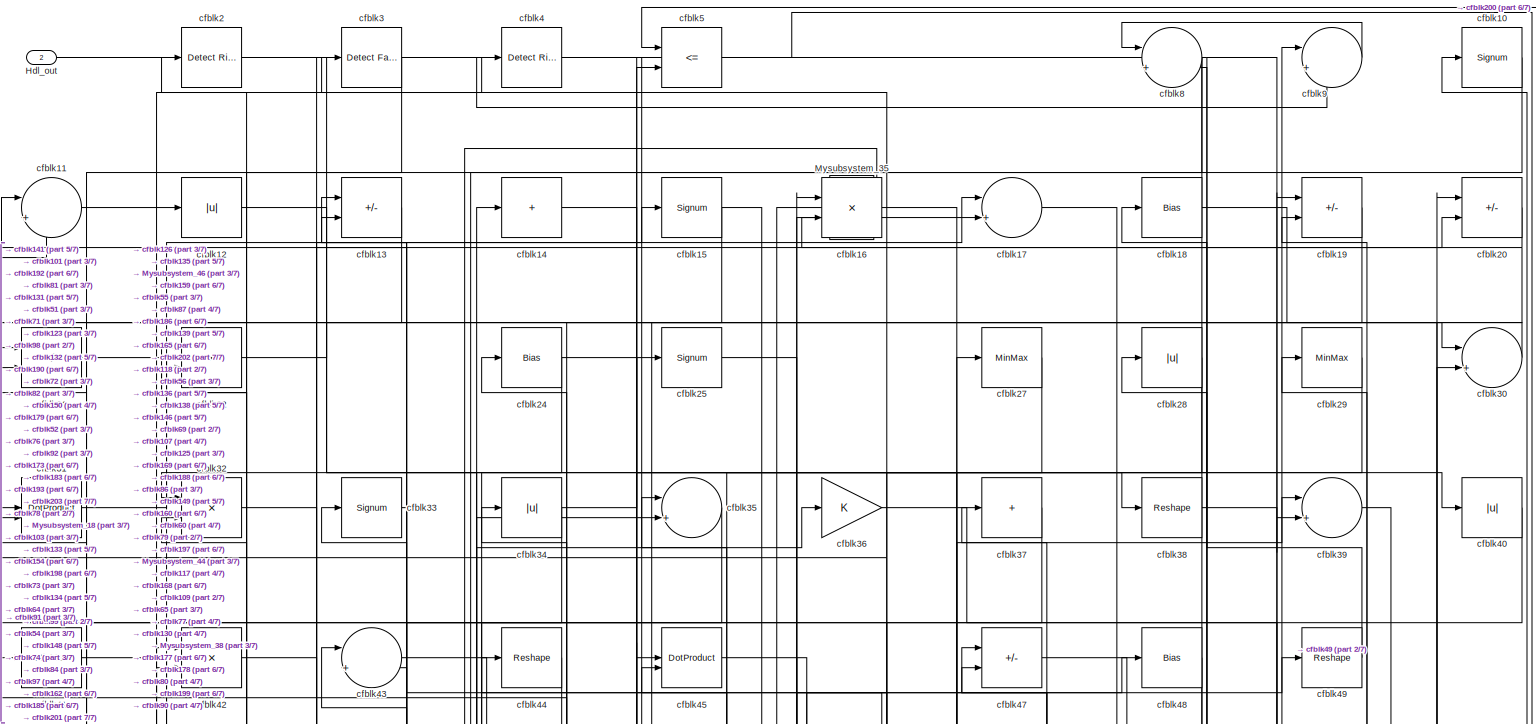
[diagram: root canvas - part 1/7, full width, top band]
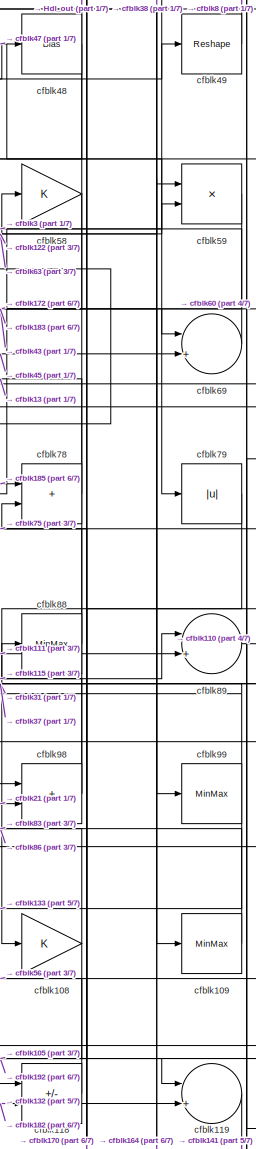
[diagram: root canvas - part 2/7, middle right region]
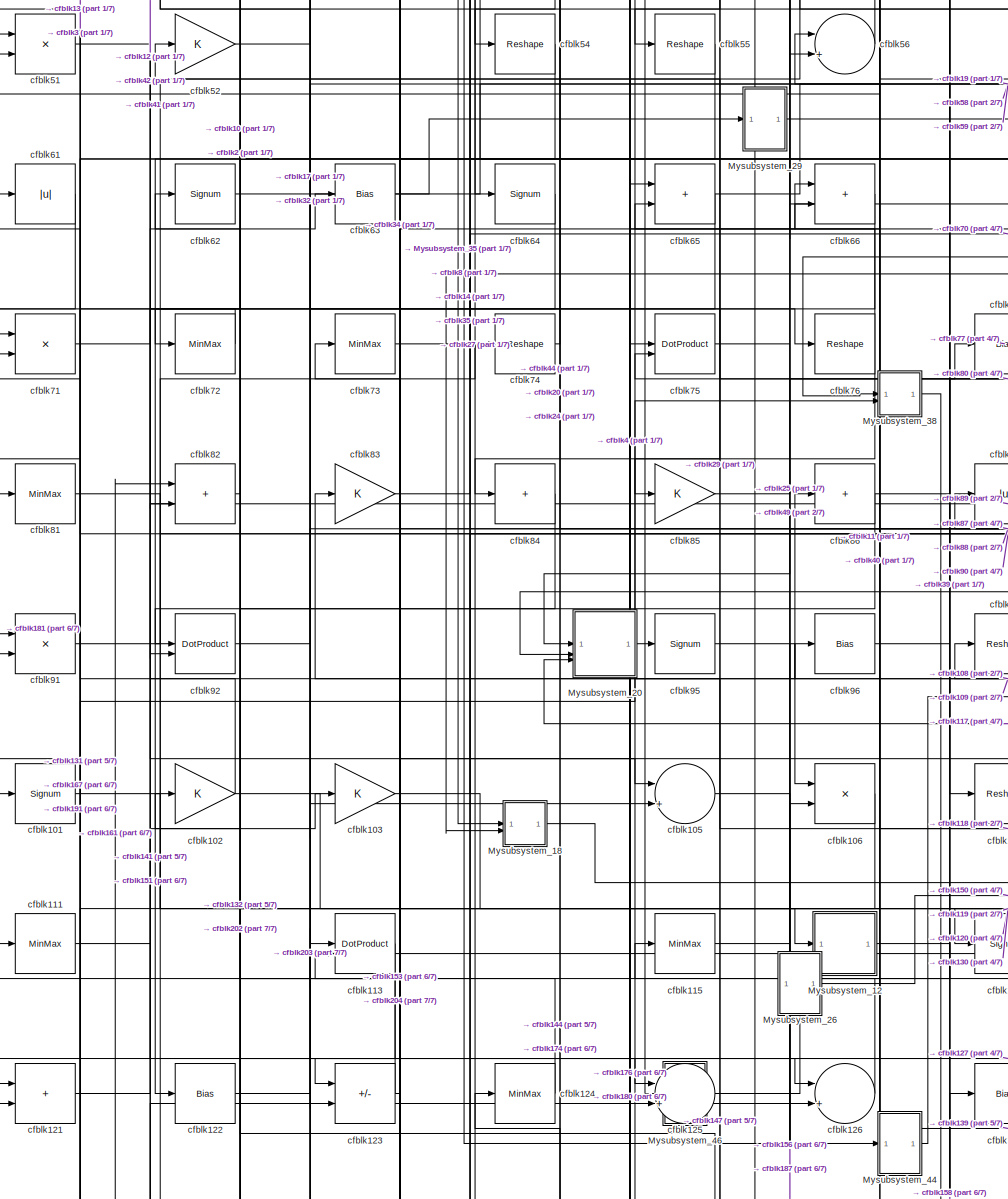
[diagram: root canvas - part 3/7, central region]
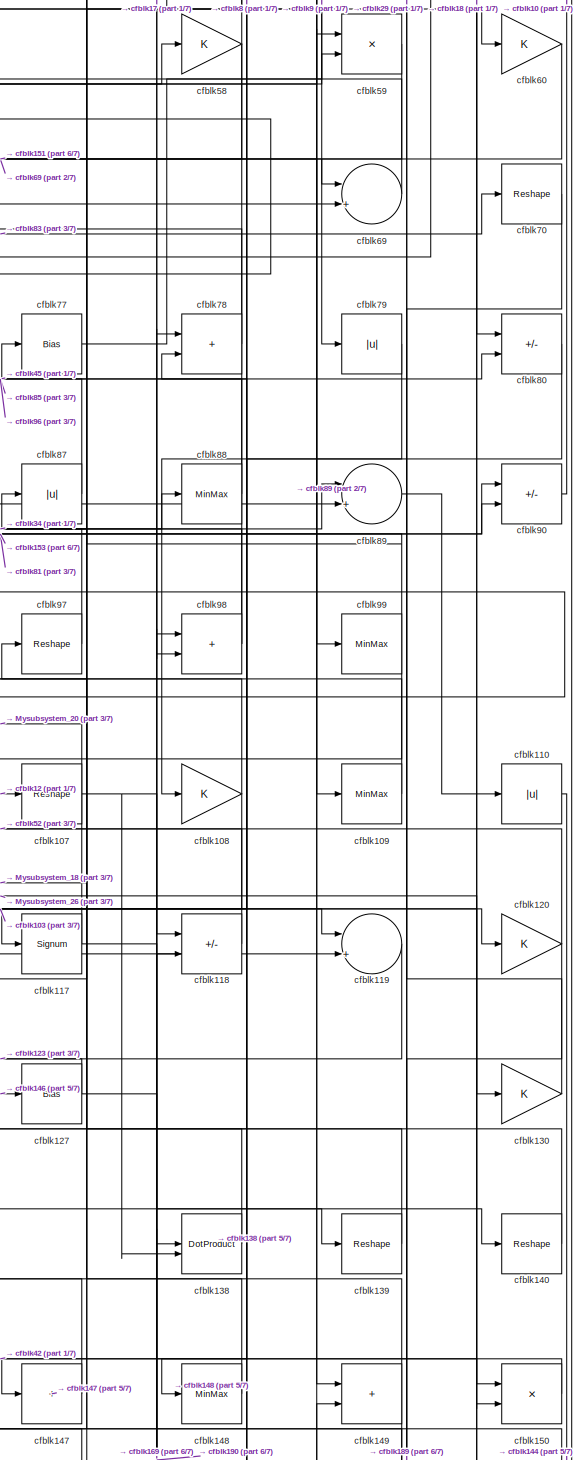
[diagram: root canvas - part 4/7, middle right region]
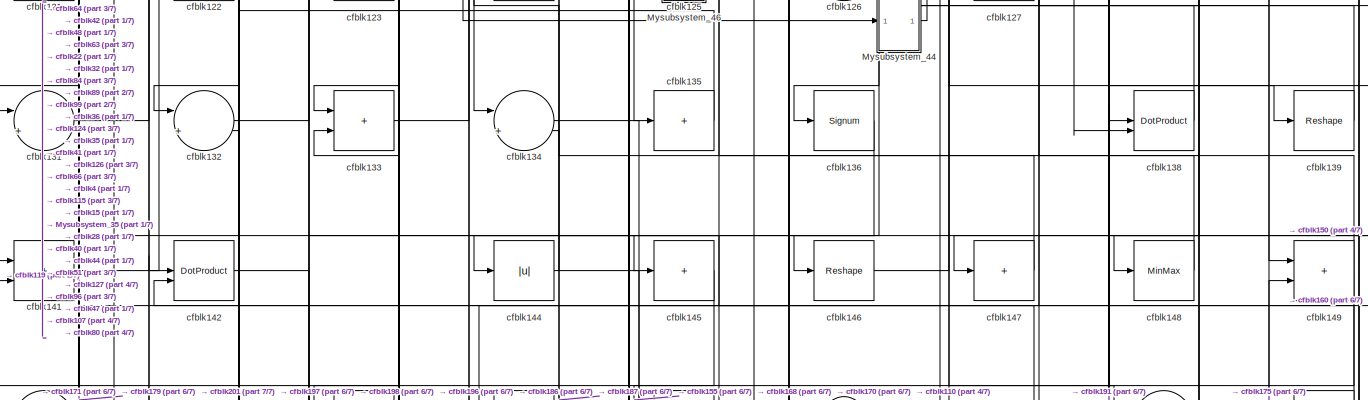
[diagram: root canvas - part 5/7, full width, bottom band]
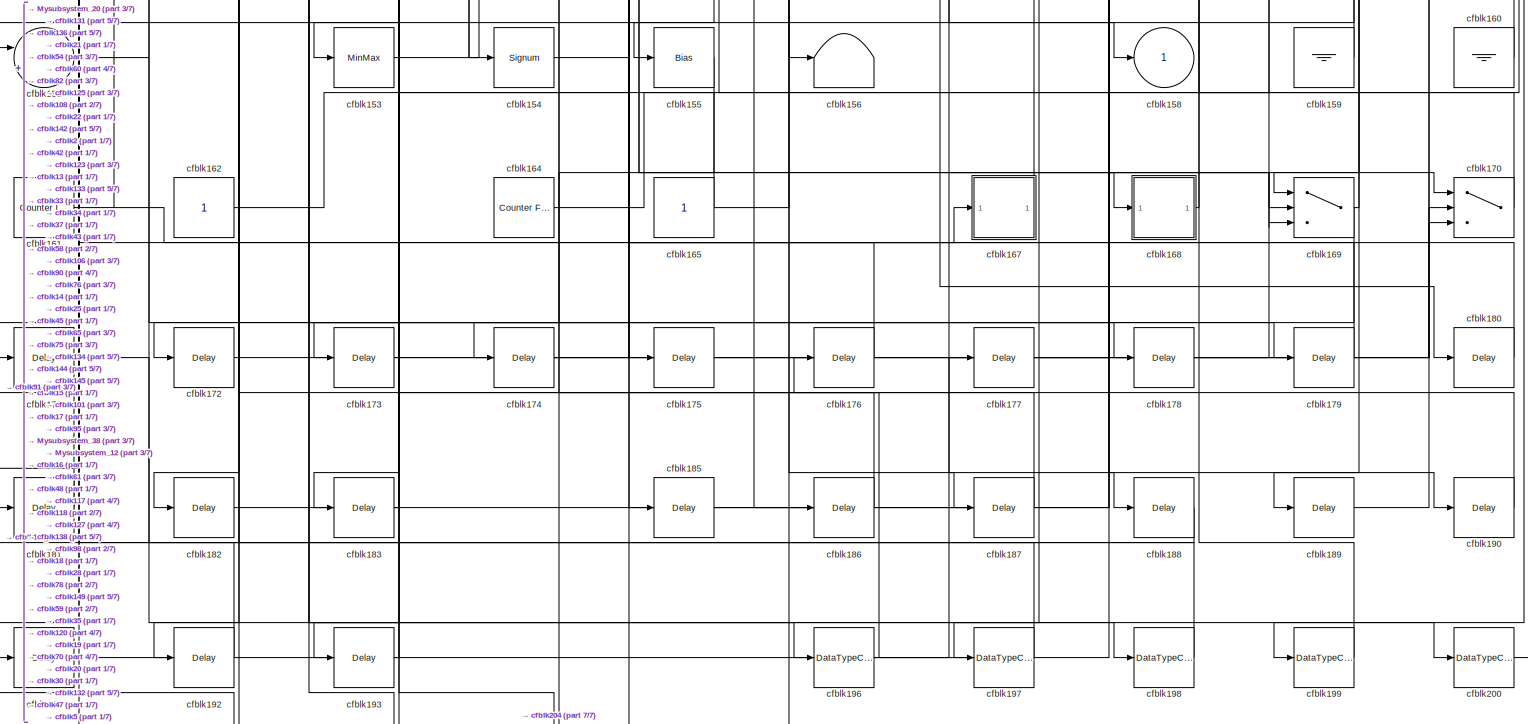
[diagram: root canvas - part 6/7, full width, bottom band]
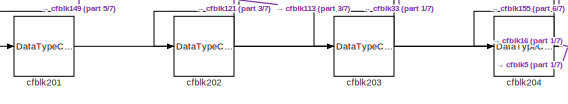
[diagram: root canvas - part 7/7, bottom left region]
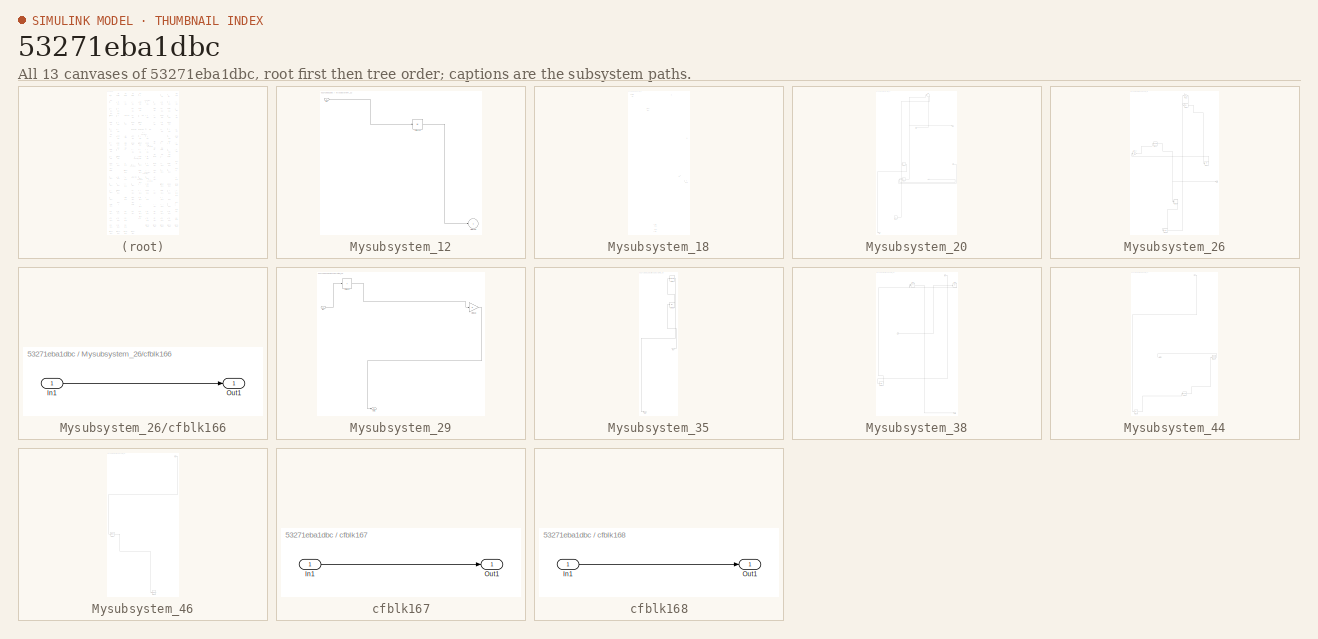
[diagram: thumbnail index - all 13 canvases of the model, root first then tree order]
MODEL slx_53271eba1dbc
KIND model
CONFIG AbsTol = auto
CONFIG EnableMultiTasking = off
CONFIG FixedStep = auto
CONFIG MaxStep = auto
CONFIG MinStep = auto
CONFIG RelTol = 1e-3
CONFIG SampleTimeConstraint = Unconstrained
CONFIG SolverName = VariableStepAuto
CONFIG StartTime = 0.0
CONFIG StopTime = 10.0
BLOCK [Outport] Hdl_out
  OutDataTypeStr = uint8
  Port = 2
BLOCK [SubSystem] Mysubsystem_12
  RTWFcnName = Mysubsystem_12
  RTWFcnNameOpts = User specified
  RTWFileNameOpts = Use function name
  RTWSystemCode = Reusable function
  TreatAsAtomicUnit = on
BLOCK [Inport] Mysubsystem_12/In1
BLOCK [Abs] Mysubsystem_12/cfblk116
  SaturateOnIntegerOverflow = off
BLOCK [Outport] Mysubsystem_12/cfblk158
  VectorParamsAs1DForOutWhenUnconnected = off
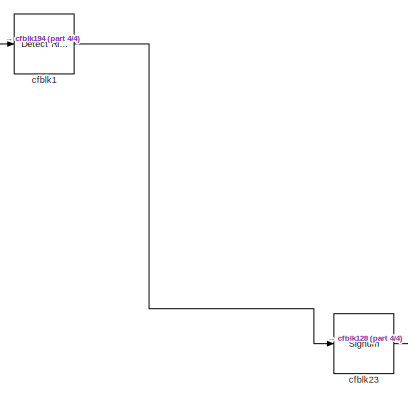
[diagram: Mysubsystem_18 - part 1/4, top left region]
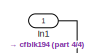
[diagram: Mysubsystem_18 - part 2/4, top right region]
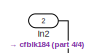
[diagram: Mysubsystem_18 - part 3/4, top right region]
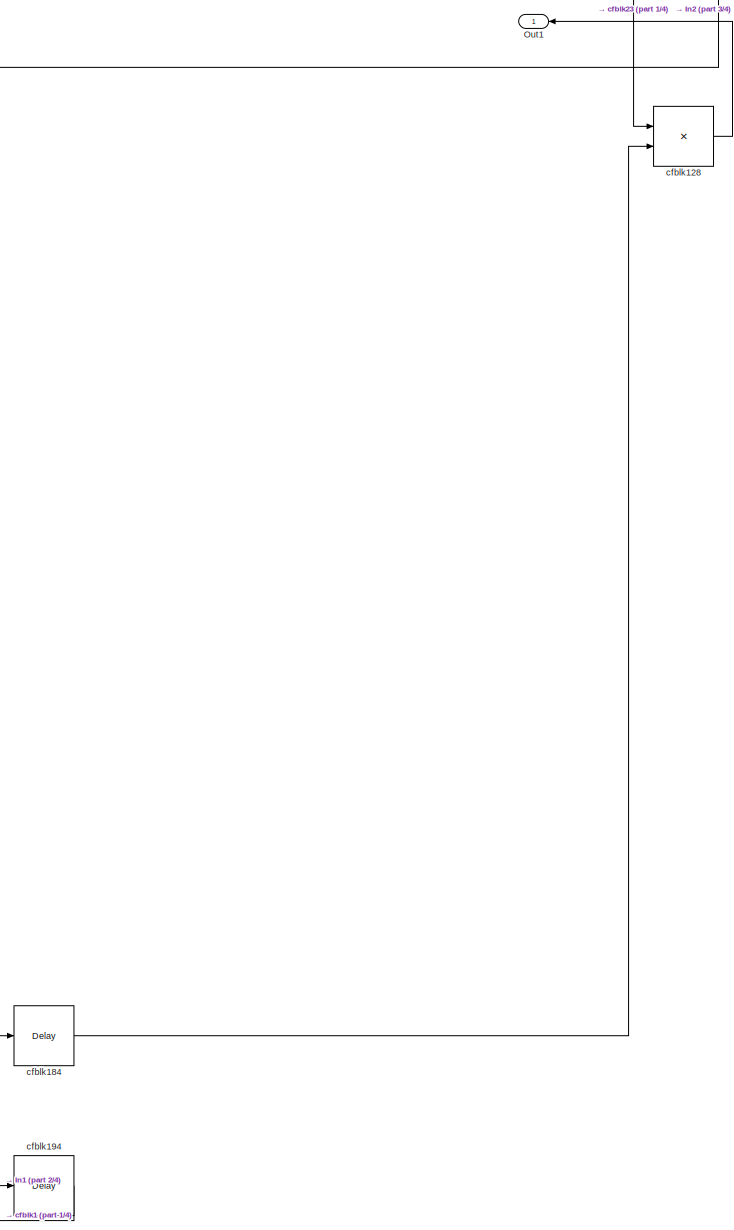
[diagram: Mysubsystem_18 - part 4/4, bottom right region]
BLOCK [SubSystem] Mysubsystem_18
  RTWFcnName = Mysubsystem_18
  RTWFcnNameOpts = User specified
  RTWFileNameOpts = Use function name
  RTWSystemCode = Reusable function
  TreatAsAtomicUnit = on
BLOCK [Inport] Mysubsystem_18/In1
BLOCK [Inport] Mysubsystem_18/In2
  Port = 2
BLOCK [Outport] Mysubsystem_18/Out1
BLOCK [Reference] Mysubsystem_18/cfblk1  REF=hdlsllib/Logic and Bit
Operations/Detect Rise
Positive
  SourceBlock = hdlsllib/Logic and Bit\nOperations/Detect Rise\nPositive
  SourceType = Detect Rise Positive
BLOCK [Product] Mysubsystem_18/cfblk128
  Inputs = */
  RndMeth = Zero
  SaturateOnIntegerOverflow = on
BLOCK [Delay] Mysubsystem_18/cfblk184
  InputPortMap = u0
  SampleTime = 1
BLOCK [Delay] Mysubsystem_18/cfblk194
  InputPortMap = u0
  SampleTime = 1
BLOCK [Signum] Mysubsystem_18/cfblk23
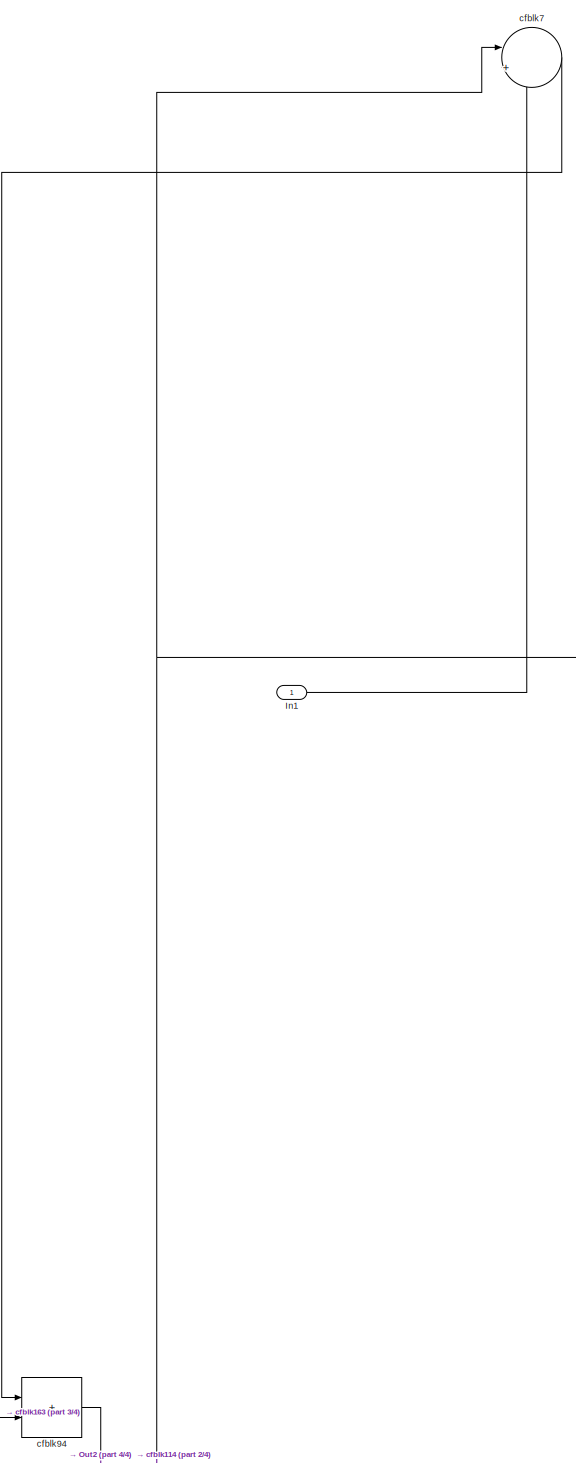
[diagram: Mysubsystem_20 - part 1/4, top center region]
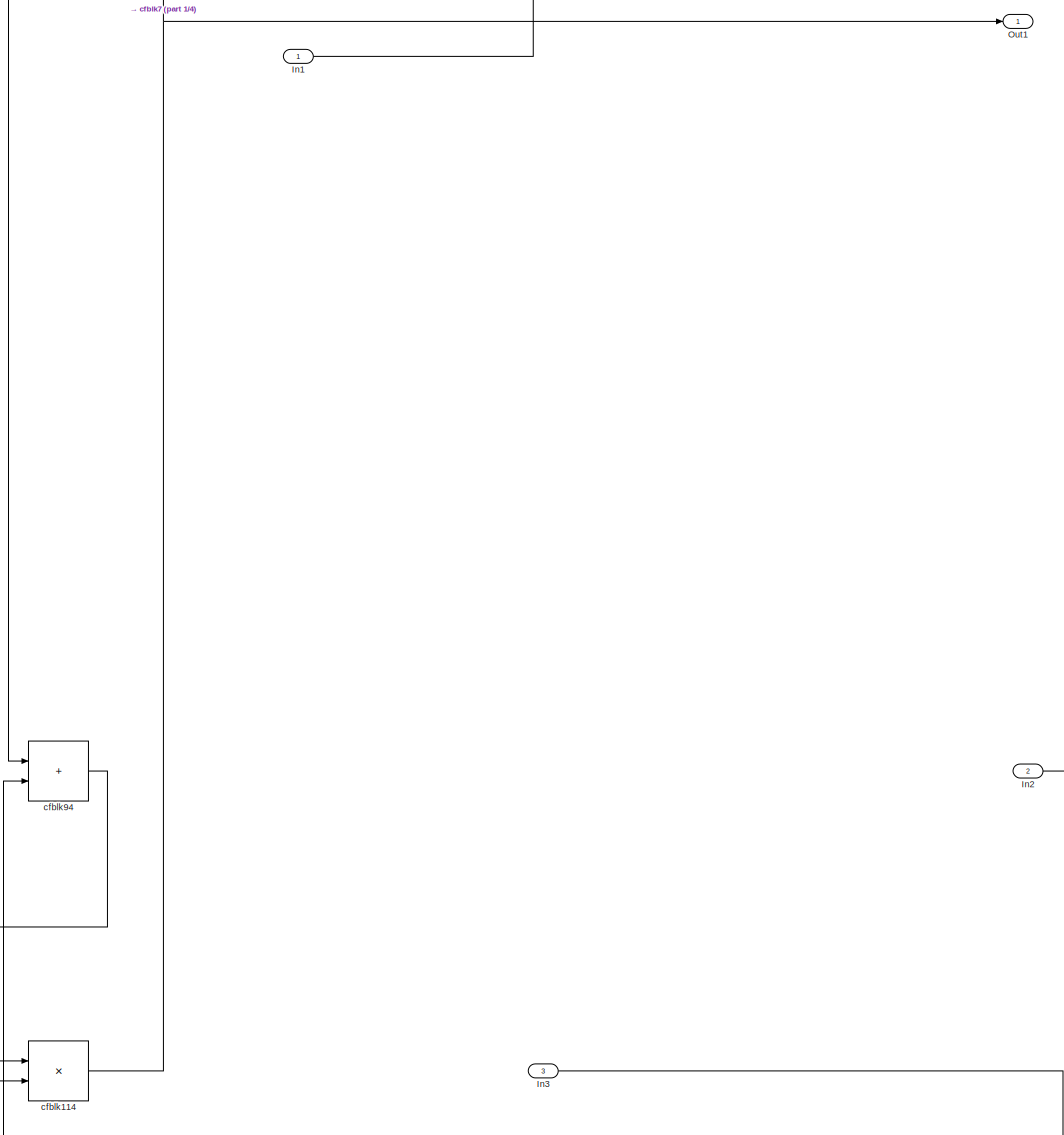
[diagram: Mysubsystem_20 - part 2/4, central region]
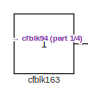
[diagram: Mysubsystem_20 - part 3/4, bottom left region]
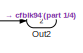
[diagram: Mysubsystem_20 - part 4/4, bottom left region]
BLOCK [SubSystem] Mysubsystem_20
  RTWFcnName = Mysubsystem_20
  RTWFcnNameOpts = User specified
  RTWFileNameOpts = Use function name
  RTWSystemCode = Reusable function
  TreatAsAtomicUnit = on
BLOCK [Inport] Mysubsystem_20/In1
BLOCK [Inport] Mysubsystem_20/In2
  Port = 2
BLOCK [Inport] Mysubsystem_20/In3
  Port = 3
BLOCK [Outport] Mysubsystem_20/Out1
BLOCK [Outport] Mysubsystem_20/Out2
  Port = 2
BLOCK [Product] Mysubsystem_20/cfblk114
  Inputs = */
  RndMeth = Zero
  SaturateOnIntegerOverflow = on
BLOCK [Constant] Mysubsystem_20/cfblk163
  SampleTime = -1
BLOCK [Sum] Mysubsystem_20/cfblk7
  Inputs = |++
BLOCK [Sum] Mysubsystem_20/cfblk94
  IconShape = rectangular
BLOCK [SubSystem] Mysubsystem_26
  RTWFcnName = Mysubsystem_26
  RTWFcnNameOpts = User specified
  RTWFileNameOpts = Use function name
  RTWSystemCode = Reusable function
  TreatAsAtomicUnit = on
BLOCK [Outport] Mysubsystem_26/Out1
BLOCK [Reshape] Mysubsystem_26/cfblk104
BLOCK [Gain] Mysubsystem_26/cfblk112
BLOCK [Abs] Mysubsystem_26/cfblk129
  SaturateOnIntegerOverflow = off
BLOCK [SubSystem] Mysubsystem_26/cfblk166
  LibrarySourceBlock = hdlsllib/Ports &\nSubsystems/Subsystem
BLOCK [Inport] Mysubsystem_26/cfblk166/In1
BLOCK [Outport] Mysubsystem_26/cfblk166/Out1
BLOCK [Delay] Mysubsystem_26/cfblk195
  InputPortMap = u0
  SampleTime = 1
BLOCK [Gain] Mysubsystem_26/cfblk57
BLOCK [Abs] Mysubsystem_26/cfblk67
  SaturateOnIntegerOverflow = off
BLOCK [SubSystem] Mysubsystem_29
  RTWFcnName = Mysubsystem_29
  RTWFcnNameOpts = User specified
  RTWFileNameOpts = Use function name
  RTWSystemCode = Reusable function
  TreatAsAtomicUnit = on
BLOCK [Inport] Mysubsystem_29/In1
BLOCK [Outport] Mysubsystem_29/Out1
BLOCK [Sum] Mysubsystem_29/cfblk53
  IconShape = rectangular
  Inputs = +
BLOCK [Gain] Mysubsystem_29/cfblk68
BLOCK [SubSystem] Mysubsystem_35
  RTWFcnName = Mysubsystem_35
  RTWFcnNameOpts = User specified
  RTWFileNameOpts = Use function name
  RTWSystemCode = Reusable function
  TreatAsAtomicUnit = on
BLOCK [Inport] Mysubsystem_35/In1
BLOCK [Outport] Mysubsystem_35/Out1
BLOCK [Abs] Mysubsystem_35/cfblk26
  SaturateOnIntegerOverflow = off
BLOCK [Signum] Mysubsystem_35/cfblk6
BLOCK [SubSystem] Mysubsystem_38
  RTWFcnName = Mysubsystem_38
  RTWFcnNameOpts = User specified
  RTWFileNameOpts = Use function name
  RTWSystemCode = Reusable function
  TreatAsAtomicUnit = on
BLOCK [Inport] Mysubsystem_38/In1
BLOCK [Inport] Mysubsystem_38/In2
  Port = 2
BLOCK [Outport] Mysubsystem_38/Out1
BLOCK [Bias] Mysubsystem_38/cfblk143
  Bias = 0.0
  SaturateOnIntegerOverflow = off
BLOCK [Sum] Mysubsystem_38/cfblk46
  IconShape = rectangular
  Inputs = +-
BLOCK [Abs] Mysubsystem_38/cfblk50
  SaturateOnIntegerOverflow = off
BLOCK [SubSystem] Mysubsystem_44
  RTWFcnName = Mysubsystem_44
  RTWFcnNameOpts = User specified
  RTWFileNameOpts = Use function name
  RTWSystemCode = Reusable function
  TreatAsAtomicUnit = on
BLOCK [Inport] Mysubsystem_44/In1
BLOCK [Outport] Mysubsystem_44/Out1
BLOCK [Signum] Mysubsystem_44/cfblk100
BLOCK [Reshape] Mysubsystem_44/cfblk137
BLOCK [Abs] Mysubsystem_44/cfblk152
  SaturateOnIntegerOverflow = off
BLOCK [SubSystem] Mysubsystem_46
  RTWFcnName = Mysubsystem_46
  RTWFcnNameOpts = User specified
  RTWFileNameOpts = Use function name
  RTWSystemCode = Reusable function
  TreatAsAtomicUnit = on
BLOCK [Inport] Mysubsystem_46/In1
BLOCK [ToWorkspace] Mysubsystem_46/cfblk157
  MaxDataPoints = inf
  SampleTime = -1
  SaveFormat = Timeseries
  VariableName = simout
BLOCK [MinMax] Mysubsystem_46/cfblk93
BLOCK [Signum] cfblk10
BLOCK [Signum] cfblk101
BLOCK [Gain] cfblk102
  OutDataTypeStr = uint8
BLOCK [Gain] cfblk103
  OutDataTypeStr = uint8
BLOCK [Sum] cfblk105
  Inputs = |++
  OutDataTypeStr = uint8
BLOCK [Product] cfblk106
  Inputs = */
  OutDataTypeStr = uint8
  RndMeth = Zero
  SaturateOnIntegerOverflow = on
BLOCK [Reshape] cfblk107
BLOCK [Gain] cfblk108
  OutDataTypeStr = uint8
BLOCK [MinMax] cfblk109
  OutDataTypeStr = uint8
BLOCK [Sum] cfblk11
  Inputs = |++
  OutDataTypeStr = uint8
BLOCK [Abs] cfblk110
  OutDataTypeStr = uint8
  SaturateOnIntegerOverflow = off
BLOCK [MinMax] cfblk111
  OutDataTypeStr = uint8
BLOCK [DotProduct] cfblk113
  OutDataTypeStr = uint8
BLOCK [MinMax] cfblk115
  OutDataTypeStr = uint8
BLOCK [Signum] cfblk117
BLOCK [Sum] cfblk118
  IconShape = rectangular
  Inputs = +-
  OutDataTypeStr = uint8
BLOCK [Sum] cfblk119
  Inputs = |++
  OutDataTypeStr = uint8
BLOCK [Abs] cfblk12
  OutDataTypeStr = uint8
  SaturateOnIntegerOverflow = off
BLOCK [Gain] cfblk120
  OutDataTypeStr = uint8
BLOCK [Sum] cfblk121
  IconShape = rectangular
  OutDataTypeStr = uint8
BLOCK [Bias] cfblk122
  Bias = 0.0
  SaturateOnIntegerOverflow = off
BLOCK [Sum] cfblk123
  IconShape = rectangular
  Inputs = +-
  OutDataTypeStr = uint8
BLOCK [MinMax] cfblk124
  OutDataTypeStr = uint8
BLOCK [Sum] cfblk125
  Inputs = |++
  OutDataTypeStr = uint8
BLOCK [Sum] cfblk126
  Inputs = |++
  OutDataTypeStr = uint8
BLOCK [Bias] cfblk127
  Bias = 0.0
  SaturateOnIntegerOverflow = off
BLOCK [Sum] cfblk13
  IconShape = rectangular
  Inputs = +-
  OutDataTypeStr = uint8
BLOCK [Gain] cfblk130
  OutDataTypeStr = uint8
BLOCK [Sum] cfblk131
  Inputs = |++
  OutDataTypeStr = uint8
BLOCK [Sum] cfblk132
  Inputs = |++
  OutDataTypeStr = uint8
BLOCK [Sum] cfblk133
  IconShape = rectangular
  OutDataTypeStr = uint8
BLOCK [Sum] cfblk134
  Inputs = |++
  OutDataTypeStr = uint8
BLOCK [Sum] cfblk135
  IconShape = rectangular
  Inputs = +
  OutDataTypeStr = uint8
BLOCK [Signum] cfblk136
BLOCK [DotProduct] cfblk138
  OutDataTypeStr = uint8
BLOCK [Reshape] cfblk139
BLOCK [Sum] cfblk14
  IconShape = rectangular
  Inputs = +
  OutDataTypeStr = uint8
BLOCK [Reshape] cfblk140
BLOCK [Sum] cfblk141
  IconShape = rectangular
  OutDataTypeStr = uint8
BLOCK [DotProduct] cfblk142
  OutDataTypeStr = uint8
BLOCK [Abs] cfblk144
  OutDataTypeStr = uint8
  SaturateOnIntegerOverflow = off
BLOCK [Sum] cfblk145
  IconShape = rectangular
  Inputs = +
  OutDataTypeStr = uint8
BLOCK [Reshape] cfblk146
BLOCK [Sum] cfblk147
  IconShape = rectangular
  Inputs = +
  OutDataTypeStr = uint8
BLOCK [MinMax] cfblk148
  OutDataTypeStr = uint8
BLOCK [Sum] cfblk149
  IconShape = rectangular
  OutDataTypeStr = uint8
BLOCK [Signum] cfblk15
BLOCK [Product] cfblk150
  Inputs = */
  OutDataTypeStr = uint8
  RndMeth = Zero
  SaturateOnIntegerOverflow = on
BLOCK [Sum] cfblk151
  Inputs = |++
  OutDataTypeStr = uint8
BLOCK [MinMax] cfblk153
  OutDataTypeStr = uint8
BLOCK [Signum] cfblk154
BLOCK [Bias] cfblk155
  Bias = 0.0
  SaturateOnIntegerOverflow = off
BLOCK [Terminator] cfblk156
BLOCK [Outport] cfblk158
  OutDataTypeStr = uint8
  VectorParamsAs1DForOutWhenUnconnected = off
BLOCK [Ground] cfblk159
BLOCK [Product] cfblk16
  Inputs = */
  OutDataTypeStr = uint8
  RndMeth = Zero
  SaturateOnIntegerOverflow = on
BLOCK [Ground] cfblk160
BLOCK [Reference] cfblk161  REF=hdlsllib/Sources/Counter
Limited
  SourceBlock = hdlsllib/Sources/Counter\nLimited
  SourceType = Counter Limited
BLOCK [Constant] cfblk162
  OutDataTypeStr = uint8
  SampleTime = -1
BLOCK [Reference] cfblk164  REF=hdlsllib/Sources/Counter
Free-Running
  SourceBlock = hdlsllib/Sources/Counter\nFree-Running
  SourceType = Counter Free-Running
BLOCK [Constant] cfblk165
  OutDataTypeStr = uint8
  SampleTime = -1
BLOCK [SubSystem] cfblk167
  LibrarySourceBlock = hdlsllib/Ports &\nSubsystems/Subsystem
BLOCK [Inport] cfblk167/In1
BLOCK [Outport] cfblk167/Out1
BLOCK [SubSystem] cfblk168
  LibrarySourceBlock = hdlsllib/Ports &\nSubsystems/Subsystem
BLOCK [Inport] cfblk168/In1
BLOCK [Outport] cfblk168/Out1
BLOCK [Switch] cfblk169
  InputSameDT = off
  OutDataTypeStr = uint8
  SaturateOnIntegerOverflow = off
BLOCK [Sum] cfblk17
  Inputs = |++
  OutDataTypeStr = uint8
BLOCK [Switch] cfblk170
  InputSameDT = off
  OutDataTypeStr = uint8
  SaturateOnIntegerOverflow = off
BLOCK [Delay] cfblk171
  InputPortMap = u0
  SampleTime = 1
BLOCK [Delay] cfblk172
  InputPortMap = u0
  SampleTime = 1
BLOCK [Delay] cfblk173
  InputPortMap = u0
  SampleTime = 1
BLOCK [Delay] cfblk174
  InputPortMap = u0
  SampleTime = 1
BLOCK [Delay] cfblk175
  InputPortMap = u0
  SampleTime = 1
BLOCK [Delay] cfblk176
  InputPortMap = u0
  SampleTime = 1
BLOCK [Delay] cfblk177
  InputPortMap = u0
  SampleTime = 1
BLOCK [Delay] cfblk178
  InputPortMap = u0
  SampleTime = 1
BLOCK [Delay] cfblk179
  InputPortMap = u0
  SampleTime = 1
BLOCK [Bias] cfblk18
  Bias = 0.0
  SaturateOnIntegerOverflow = off
BLOCK [Delay] cfblk180
  InputPortMap = u0
  SampleTime = 1
BLOCK [Delay] cfblk181
  InputPortMap = u0
  SampleTime = 1
BLOCK [Delay] cfblk182
  InputPortMap = u0
  SampleTime = 1
BLOCK [Delay] cfblk183
  InputPortMap = u0
  SampleTime = 1
BLOCK [Delay] cfblk185
  InputPortMap = u0
  SampleTime = 1
BLOCK [Delay] cfblk186
  InputPortMap = u0
  SampleTime = 1
BLOCK [Delay] cfblk187
  InputPortMap = u0
  SampleTime = 1
BLOCK [Delay] cfblk188
  InputPortMap = u0
  SampleTime = 1
BLOCK [Delay] cfblk189
  InputPortMap = u0
  SampleTime = 1
BLOCK [Sum] cfblk19
  IconShape = rectangular
  Inputs = +-
  OutDataTypeStr = uint8
BLOCK [Delay] cfblk190
  InputPortMap = u0
  SampleTime = 1
BLOCK [Delay] cfblk191
  InputPortMap = u0
  SampleTime = 1
BLOCK [Delay] cfblk192
  InputPortMap = u0
  SampleTime = 1
BLOCK [Delay] cfblk193
  InputPortMap = u0
  SampleTime = 1
BLOCK [DataTypeConversion] cfblk196
  OutDataTypeStr = uint8
  RndMeth = Floor
  SaturateOnIntegerOverflow = off
BLOCK [DataTypeConversion] cfblk197
  OutDataTypeStr = uint8
  RndMeth = Floor
  SaturateOnIntegerOverflow = off
BLOCK [DataTypeConversion] cfblk198
  OutDataTypeStr = uint8
  RndMeth = Floor
  SaturateOnIntegerOverflow = off
BLOCK [DataTypeConversion] cfblk199
  OutDataTypeStr = uint8
  RndMeth = Floor
  SaturateOnIntegerOverflow = off
BLOCK [Reference] cfblk2  REF=hdlsllib/Logic and Bit
Operations/Detect Rise
Positive
  SourceBlock = hdlsllib/Logic and Bit\nOperations/Detect Rise\nPositive
  SourceType = Detect Rise Positive
BLOCK [Sum] cfblk20
  IconShape = rectangular
  Inputs = +-
  OutDataTypeStr = uint8
BLOCK [DataTypeConversion] cfblk200
  OutDataTypeStr = uint8
  RndMeth = Floor
  SaturateOnIntegerOverflow = off
BLOCK [DataTypeConversion] cfblk201
  OutDataTypeStr = uint8
  RndMeth = Floor
  SaturateOnIntegerOverflow = off
BLOCK [DataTypeConversion] cfblk202
  OutDataTypeStr = uint8
  RndMeth = Floor
  SaturateOnIntegerOverflow = off
BLOCK [DataTypeConversion] cfblk203
  OutDataTypeStr = uint8
  RndMeth = Floor
  SaturateOnIntegerOverflow = off
BLOCK [DataTypeConversion] cfblk204
  OutDataTypeStr = uint8
  RndMeth = Floor
  SaturateOnIntegerOverflow = off
BLOCK [Sum] cfblk21
  IconShape = rectangular
  Inputs = +-
  OutDataTypeStr = uint8
BLOCK [Product] cfblk22
  Inputs = */
  OutDataTypeStr = uint8
  RndMeth = Zero
  SaturateOnIntegerOverflow = on
BLOCK [Bias] cfblk24
  Bias = 0.0
  SaturateOnIntegerOverflow = off
BLOCK [Signum] cfblk25
BLOCK [MinMax] cfblk27
  OutDataTypeStr = uint8
BLOCK [Abs] cfblk28
  OutDataTypeStr = uint8
  SaturateOnIntegerOverflow = off
BLOCK [MinMax] cfblk29
  OutDataTypeStr = uint8
BLOCK [Reference] cfblk3  REF=hdlsllib/Logic and Bit
Operations/Detect Fall
Negative
  SourceBlock = hdlsllib/Logic and Bit\nOperations/Detect Fall\nNegative
  SourceType = Detect Fall Negative
BLOCK [Sum] cfblk30
  Inputs = |++
  OutDataTypeStr = uint8
BLOCK [DotProduct] cfblk31
  OutDataTypeStr = uint8
BLOCK [Product] cfblk32
  Inputs = */
  OutDataTypeStr = uint8
  RndMeth = Zero
  SaturateOnIntegerOverflow = on
BLOCK [Signum] cfblk33
BLOCK [Abs] cfblk34
  OutDataTypeStr = uint8
  SaturateOnIntegerOverflow = off
BLOCK [Sum] cfblk35
  Inputs = |++
  OutDataTypeStr = uint8
BLOCK [Gain] cfblk36
  OutDataTypeStr = uint8
BLOCK [Sum] cfblk37
  IconShape = rectangular
  Inputs = +
  OutDataTypeStr = uint8
BLOCK [Reshape] cfblk38
BLOCK [Sum] cfblk39
  Inputs = |++
  OutDataTypeStr = uint8
BLOCK [Reference] cfblk4  REF=hdlsllib/Logic and Bit
Operations/Detect Rise
Positive
  SourceBlock = hdlsllib/Logic and Bit\nOperations/Detect Rise\nPositive
  SourceType = Detect Rise Positive
BLOCK [Abs] cfblk40
  OutDataTypeStr = uint8
  SaturateOnIntegerOverflow = off
BLOCK [MinMax] cfblk41
  OutDataTypeStr = uint8
BLOCK [Product] cfblk42
  Inputs = */
  OutDataTypeStr = uint8
  RndMeth = Zero
  SaturateOnIntegerOverflow = on
BLOCK [Sum] cfblk43
  Inputs = |++
  OutDataTypeStr = uint8
BLOCK [Reshape] cfblk44
BLOCK [DotProduct] cfblk45
  OutDataTypeStr = uint8
BLOCK [Sum] cfblk47
  IconShape = rectangular
  Inputs = +-
  OutDataTypeStr = uint8
BLOCK [Bias] cfblk48
  Bias = 0.0
  SaturateOnIntegerOverflow = off
BLOCK [Reshape] cfblk49
BLOCK [RelationalOperator] cfblk5
  InputSameDT = off
  Operator = <=
  OutDataTypeStr = boolean
BLOCK [Product] cfblk51
  Inputs = */
  OutDataTypeStr = uint8
  RndMeth = Zero
  SaturateOnIntegerOverflow = on
BLOCK [Gain] cfblk52
  OutDataTypeStr = uint8
BLOCK [Reshape] cfblk54
BLOCK [Reshape] cfblk55
BLOCK [Sum] cfblk56
  Inputs = |++
  OutDataTypeStr = uint8
BLOCK [Gain] cfblk58
  OutDataTypeStr = uint8
BLOCK [Product] cfblk59
  Inputs = */
  OutDataTypeStr = uint8
  RndMeth = Zero
  SaturateOnIntegerOverflow = on
BLOCK [Gain] cfblk60
  OutDataTypeStr = uint8
BLOCK [Abs] cfblk61
  OutDataTypeStr = uint8
  SaturateOnIntegerOverflow = off
BLOCK [Signum] cfblk62
BLOCK [Bias] cfblk63
  Bias = 0.0
  SaturateOnIntegerOverflow = off
BLOCK [Signum] cfblk64
BLOCK [Sum] cfblk65
  IconShape = rectangular
  OutDataTypeStr = uint8
BLOCK [Sum] cfblk66
  IconShape = rectangular
  OutDataTypeStr = uint8
BLOCK [Sum] cfblk69
  Inputs = |++
  OutDataTypeStr = uint8
BLOCK [Reshape] cfblk70
BLOCK [Product] cfblk71
  Inputs = */
  OutDataTypeStr = uint8
  RndMeth = Zero
  SaturateOnIntegerOverflow = on
BLOCK [MinMax] cfblk72
  OutDataTypeStr = uint8
BLOCK [MinMax] cfblk73
  OutDataTypeStr = uint8
BLOCK [Reshape] cfblk74
BLOCK [DotProduct] cfblk75
  OutDataTypeStr = uint8
BLOCK [Reshape] cfblk76
BLOCK [Bias] cfblk77
  Bias = 0.0
  SaturateOnIntegerOverflow = off
BLOCK [Sum] cfblk78
  IconShape = rectangular
  OutDataTypeStr = uint8
BLOCK [Abs] cfblk79
  OutDataTypeStr = uint8
  SaturateOnIntegerOverflow = off
BLOCK [Sum] cfblk8
  Inputs = |++
  OutDataTypeStr = uint8
BLOCK [Sum] cfblk80
  IconShape = rectangular
  Inputs = +-
  OutDataTypeStr = uint8
BLOCK [MinMax] cfblk81
  OutDataTypeStr = uint8
BLOCK [Sum] cfblk82
  IconShape = rectangular
  OutDataTypeStr = uint8
BLOCK [Gain] cfblk83
  OutDataTypeStr = uint8
BLOCK [Sum] cfblk84
  IconShape = rectangular
  Inputs = +
  OutDataTypeStr = uint8
BLOCK [Gain] cfblk85
  OutDataTypeStr = uint8
BLOCK [Sum] cfblk86
  IconShape = rectangular
  Inputs = +
  OutDataTypeStr = uint8
BLOCK [Abs] cfblk87
  OutDataTypeStr = uint8
  SaturateOnIntegerOverflow = off
BLOCK [MinMax] cfblk88
  OutDataTypeStr = uint8
BLOCK [Sum] cfblk89
  Inputs = |++
  OutDataTypeStr = uint8
BLOCK [Sum] cfblk9
  Inputs = |++
  OutDataTypeStr = uint8
BLOCK [Sum] cfblk90
  IconShape = rectangular
  Inputs = +-
  OutDataTypeStr = uint8
BLOCK [Product] cfblk91
  Inputs = */
  OutDataTypeStr = uint8
  RndMeth = Zero
  SaturateOnIntegerOverflow = on
BLOCK [DotProduct] cfblk92
  OutDataTypeStr = uint8
BLOCK [Signum] cfblk95
BLOCK [Bias] cfblk96
  Bias = 0.0
  SaturateOnIntegerOverflow = off
BLOCK [Reshape] cfblk97
BLOCK [Sum] cfblk98
  IconShape = rectangular
  OutDataTypeStr = uint8
BLOCK [MinMax] cfblk99
  OutDataTypeStr = uint8
LINE Mysubsystem_12/In1:1 -> Mysubsystem_12/cfblk116:1
LINE Mysubsystem_12/cfblk116:1 -> Mysubsystem_12/cfblk158:1
LINE Mysubsystem_12:1 -> cfblk158:1
LINE Mysubsystem_18/In1:1 -> Mysubsystem_18/cfblk194:1
LINE Mysubsystem_18/In2:1 -> Mysubsystem_18/cfblk184:1
LINE Mysubsystem_18/cfblk128:1 -> Mysubsystem_18/Out1:1
LINE Mysubsystem_18/cfblk184:1 -> Mysubsystem_18/cfblk128:2
LINE Mysubsystem_18/cfblk194:1 -> Mysubsystem_18/cfblk1:1
LINE Mysubsystem_18/cfblk1:1 -> Mysubsystem_18/cfblk23:1
LINE Mysubsystem_18/cfblk23:1 -> Mysubsystem_18/cfblk128:1
NET Mysubsystem_18:1 -> cfblk111:1, cfblk87:1
LINE Mysubsystem_20/In1:1 -> Mysubsystem_20/cfblk7:2
LINE Mysubsystem_20/In2:1 -> Mysubsystem_20/cfblk114:2
LINE Mysubsystem_20/In3:1 -> Mysubsystem_20/cfblk114:1
NET Mysubsystem_20/cfblk114:1 -> Mysubsystem_20/Out1:1, Mysubsystem_20/cfblk7:1
LINE Mysubsystem_20/cfblk163:1 -> Mysubsystem_20/cfblk94:2
LINE Mysubsystem_20/cfblk7:1 -> Mysubsystem_20/cfblk94:1
LINE Mysubsystem_20/cfblk94:1 -> Mysubsystem_20/Out2:1
LINE Mysubsystem_20:1 -> Mysubsystem_38:2
LINE Mysubsystem_20:2 -> cfblk181:1
NET Mysubsystem_26/cfblk104:1 -> Mysubsystem_26/Out1:1, Mysubsystem_26/cfblk166:1
LINE Mysubsystem_26/cfblk112:1 -> Mysubsystem_26/cfblk104:1
LINE Mysubsystem_26/cfblk129:1 -> Mysubsystem_26/cfblk112:1
LINE Mysubsystem_26/cfblk166/In1:1 -> Mysubsystem_26/cfblk166/Out1:1
LINE Mysubsystem_26/cfblk166:1 -> Mysubsystem_26/cfblk195:1
LINE Mysubsystem_26/cfblk195:1 -> Mysubsystem_26/cfblk57:1
LINE Mysubsystem_26/cfblk57:1 -> Mysubsystem_26/cfblk67:1
LINE Mysubsystem_26/cfblk67:1 -> Mysubsystem_26/cfblk129:1
LINE Mysubsystem_26:1 -> cfblk150:1
LINE Mysubsystem_29/In1:1 -> Mysubsystem_29/cfblk53:1
LINE Mysubsystem_29/cfblk53:1 -> Mysubsystem_29/cfblk68:1
LINE Mysubsystem_29/cfblk68:1 -> Mysubsystem_29/Out1:1
LINE Mysubsystem_29:1 -> Mysubsystem_18:2
LINE Mysubsystem_35/In1:1 -> Mysubsystem_35/cfblk26:1
LINE Mysubsystem_35/cfblk26:1 -> Mysubsystem_35/cfblk6:1
LINE Mysubsystem_35/cfblk6:1 -> Mysubsystem_35/Out1:1
LINE Mysubsystem_35:1 -> Mysubsystem_18:1
LINE Mysubsystem_38/In1:1 -> Mysubsystem_38/cfblk143:1
LINE Mysubsystem_38/In2:1 -> Mysubsystem_38/cfblk50:1
LINE Mysubsystem_38/cfblk143:1 -> Mysubsystem_38/cfblk46:1
LINE Mysubsystem_38/cfblk46:1 -> Mysubsystem_38/Out1:1
LINE Mysubsystem_38/cfblk50:1 -> Mysubsystem_38/cfblk46:2
LINE Mysubsystem_38:1 -> cfblk180:1
LINE Mysubsystem_44/In1:1 -> Mysubsystem_44/cfblk152:1
LINE Mysubsystem_44/cfblk100:1 -> Mysubsystem_44/Out1:1
LINE Mysubsystem_44/cfblk137:1 -> Mysubsystem_44/cfblk100:1
LINE Mysubsystem_44/cfblk152:1 -> Mysubsystem_44/cfblk137:1
LINE Mysubsystem_44:1 -> Mysubsystem_20:2
LINE Mysubsystem_46/In1:1 -> Mysubsystem_46/cfblk93:1
LINE Mysubsystem_46/cfblk93:1 -> Mysubsystem_46/cfblk157:1
LINE cfblk101:1 -> cfblk156:1
NET cfblk102:1 -> Mysubsystem_12:1, cfblk105:2, cfblk71:2
NET cfblk103:1 -> cfblk130:1, cfblk35:2
LINE cfblk105:1 -> cfblk119:1
LINE cfblk106:1 -> cfblk151:1
NET cfblk107:1 -> cfblk138:2, cfblk140:1
NET cfblk108:1 -> cfblk192:1, cfblk83:1
LINE cfblk109:1 -> cfblk86:1
LINE cfblk10:1 -> cfblk72:1
LINE cfblk110:1 -> cfblk144:1
NET cfblk111:1 -> cfblk125:1, cfblk89:2, cfblk96:1
LINE cfblk113:1 -> cfblk202:1
LINE cfblk115:1 -> cfblk88:1
NET cfblk117:1 -> Mysubsystem_20:3, cfblk169:2
LINE cfblk118:1 -> cfblk56:1
LINE cfblk119:1 -> cfblk141:2
LINE cfblk11:1 -> cfblk4:1
NET cfblk120:1 -> cfblk189:1, cfblk52:1
LINE cfblk121:1 -> cfblk103:1
LINE cfblk122:1 -> cfblk59:2
NET cfblk123:1 -> cfblk102:1, cfblk153:1
NET cfblk124:1 -> cfblk62:1, cfblk73:1
LINE cfblk125:1 -> cfblk27:1
LINE cfblk126:1 -> cfblk95:1
NET cfblk127:1 -> cfblk123:1, cfblk190:1
LINE cfblk12:1 -> cfblk107:1
LINE cfblk130:1 -> cfblk29:1
LINE cfblk131:1 -> cfblk42:1
NET cfblk132:1 -> cfblk119:2, cfblk32:2, cfblk89:1
LINE cfblk133:1 -> cfblk36:1
LINE cfblk134:1 -> cfblk170:1
LINE cfblk135:1 -> cfblk22:1
NET cfblk136:1 -> cfblk145:1, cfblk171:1
LINE cfblk138:1 -> cfblk44:1
NET cfblk139:1 -> Mysubsystem_35:1, cfblk51:2, cfblk66:1
LINE cfblk13:1 -> cfblk51:1
LINE cfblk140:1 -> cfblk97:1
NET cfblk141:1 -> cfblk48:1, cfblk63:1
LINE cfblk142:1 -> cfblk196:1
NET cfblk144:1 -> cfblk124:1, cfblk126:2, cfblk168:1, cfblk66:2
LINE cfblk145:1 -> cfblk155:1
LINE cfblk146:1 -> cfblk127:1
LINE cfblk147:1 -> cfblk115:1
LINE cfblk148:1 -> cfblk41:1
NET cfblk149:1 -> cfblk201:1, cfblk47:2
LINE cfblk14:1 -> cfblk185:1
LINE cfblk150:1 -> cfblk147:1
NET cfblk151:1 -> cfblk125:2, cfblk178:1
NET cfblk153:1 -> cfblk106:2, cfblk90:1
LINE cfblk154:1 -> cfblk175:1
LINE cfblk155:1 -> cfblk204:1
LINE cfblk159:1 -> cfblk35:1
NET cfblk15:1 -> cfblk141:1, cfblk186:1
NET cfblk160:1 -> cfblk132:2, cfblk47:1
NET cfblk161:1 -> cfblk167:1, cfblk82:1
LINE cfblk162:1 -> cfblk25:1
LINE cfblk164:1 -> cfblk59:1
NET cfblk165:1 -> cfblk17:2, cfblk33:1
LINE cfblk167/In1:1 -> cfblk167/Out1:1
LINE cfblk167:1 -> cfblk61:1
LINE cfblk168/In1:1 -> cfblk168/Out1:1
LINE cfblk168:1 -> cfblk18:1
NET cfblk169:1 -> cfblk182:1, cfblk19:2
NET cfblk16:1 -> cfblk169:3, cfblk188:1
LINE cfblk170:1 -> cfblk78:2
LINE cfblk171:1 -> cfblk200:1
LINE cfblk172:1 -> cfblk98:1
LINE cfblk173:1 -> cfblk45:1
LINE cfblk174:1 -> cfblk170:2
LINE cfblk175:1 -> cfblk149:2
LINE cfblk176:1 -> cfblk65:1
LINE cfblk177:1 -> cfblk30:2
LINE cfblk178:1 -> cfblk20:1
LINE cfblk179:1 -> cfblk131:2
LINE cfblk17:1 -> cfblk60:1
LINE cfblk180:1 -> cfblk75:1
LINE cfblk181:1 -> cfblk91:1
LINE cfblk182:1 -> cfblk118:2
LINE cfblk183:1 -> cfblk13:2
LINE cfblk185:1 -> cfblk78:1
LINE cfblk186:1 -> cfblk133:2
LINE cfblk187:1 -> cfblk134:2
LINE cfblk188:1 -> cfblk11:2
LINE cfblk189:1 -> cfblk170:3
LINE cfblk18:1 -> cfblk80:1
LINE cfblk190:1 -> cfblk22:2
LINE cfblk191:1 -> cfblk138:1
LINE cfblk192:1 -> cfblk21:2
LINE cfblk193:1 -> cfblk43:1
NET cfblk196:1 -> cfblk176:1, cfblk177:1
LINE cfblk197:1 -> cfblk142:1
LINE cfblk198:1 -> cfblk142:2
LINE cfblk199:1 -> cfblk28:1
LINE cfblk19:1 -> Mysubsystem_46:1
LINE cfblk200:1 -> cfblk5:1
LINE cfblk201:1 -> cfblk5:2
NET cfblk202:1 -> cfblk121:1, cfblk16:1
LINE cfblk203:1 -> cfblk113:1
LINE cfblk204:1 -> cfblk113:2
NET cfblk20:1 -> cfblk16:2, cfblk84:1
LINE cfblk21:1 -> cfblk98:2
LINE cfblk22:1 -> cfblk30:1
NET cfblk24:1 -> cfblk32:1, cfblk40:1
LINE cfblk25:1 -> cfblk56:2
LINE cfblk27:1 -> cfblk64:1
LINE cfblk28:1 -> cfblk136:1
LINE cfblk29:1 -> cfblk55:1
NET cfblk2:1 -> cfblk154:1, cfblk198:1
LINE cfblk30:1 -> cfblk21:1
LINE cfblk31:1 -> cfblk15:1
LINE cfblk32:1 -> cfblk76:1
LINE cfblk33:1 -> cfblk203:1
NET cfblk34:1 -> cfblk173:1, cfblk38:1, cfblk91:2
LINE cfblk35:1 -> cfblk134:1
LINE cfblk36:1 -> cfblk149:1
LINE cfblk37:1 -> cfblk193:1
LINE cfblk38:1 -> cfblk109:1
LINE cfblk39:1 -> Mysubsystem_38:1
NET cfblk3:1 -> cfblk101:1, cfblk9:2
NET cfblk40:1 -> cfblk146:1, cfblk81:1
LINE cfblk41:1 -> cfblk123:2
NET cfblk42:1 -> cfblk150:2, cfblk179:1
LINE cfblk43:1 -> cfblk99:1
LINE cfblk44:1 -> cfblk54:1
NET cfblk45:1 -> cfblk118:1, cfblk69:2
LINE cfblk47:1 -> cfblk79:1
LINE cfblk48:1 -> cfblk197:1
LINE cfblk49:1 -> cfblk8:2
NET cfblk4:1 -> cfblk126:1, cfblk135:1
NET cfblk51:1 -> cfblk105:1, cfblk12:1
LINE cfblk52:1 -> cfblk20:2
LINE cfblk54:1 -> cfblk191:1
LINE cfblk55:1 -> cfblk122:1
LINE cfblk56:1 -> cfblk11:1
LINE cfblk58:1 -> cfblk183:1
LINE cfblk59:1 -> cfblk172:1
LINE cfblk5:1 -> cfblk199:1
NET cfblk60:1 -> cfblk151:2, cfblk69:1
LINE cfblk61:1 -> cfblk121:2
LINE cfblk62:1 -> Mysubsystem_29:1
LINE cfblk63:1 -> cfblk58:1
LINE cfblk64:1 -> cfblk131:1
NET cfblk65:1 -> cfblk19:1, cfblk82:2
NET cfblk66:1 -> cfblk85:1, cfblk92:2
NET cfblk69:1 -> cfblk31:1, cfblk3:1
LINE cfblk70:1 -> cfblk169:1
LINE cfblk71:1 -> cfblk42:2
LINE cfblk72:1 -> cfblk71:1
LINE cfblk73:1 -> cfblk14:1
LINE cfblk74:1 -> cfblk24:1
NET cfblk75:1 -> Mysubsystem_20:1, cfblk49:1
NET cfblk76:1 -> cfblk174:1, cfblk65:2
LINE cfblk77:1 -> cfblk9:1
LINE cfblk78:1 -> cfblk13:1
LINE cfblk79:1 -> cfblk108:1
LINE cfblk80:1 -> cfblk148:1
NET cfblk81:1 -> cfblk120:1, cfblk90:2
LINE cfblk82:1 -> cfblk2:1
LINE cfblk83:1 -> cfblk70:1
LINE cfblk84:1 -> cfblk132:1
LINE cfblk85:1 -> cfblk77:1
NET cfblk86:1 -> cfblk39:1, cfblk92:1
LINE cfblk87:1 -> cfblk45:2
LINE cfblk88:1 -> cfblk75:2
LINE cfblk89:1 -> cfblk110:1
NET cfblk8:1 -> Mysubsystem_44:1, cfblk117:1, cfblk39:2
LINE cfblk90:1 -> cfblk10:1
LINE cfblk91:1 -> cfblk74:1
LINE cfblk92:1 -> cfblk17:1
NET cfblk95:1 -> cfblk106:1, cfblk187:1
NET cfblk96:1 -> cfblk139:1, cfblk80:2
LINE cfblk97:1 -> cfblk34:1
NET cfblk98:1 -> Hdl_out:1, cfblk43:2
NET cfblk99:1 -> cfblk133:1, cfblk31:2, cfblk37:1
LINE cfblk9:1 -> cfblk8:1
note: NET lines group one-source signal fan-out (src -> all destinations, sorted); 1:1 wires keep LINE
